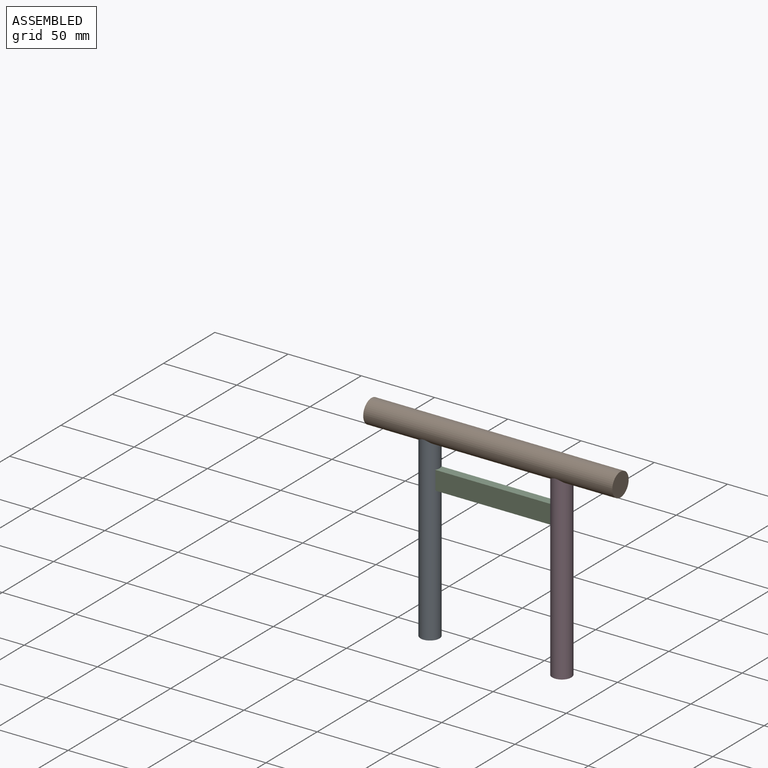
[diagram: assembled view]
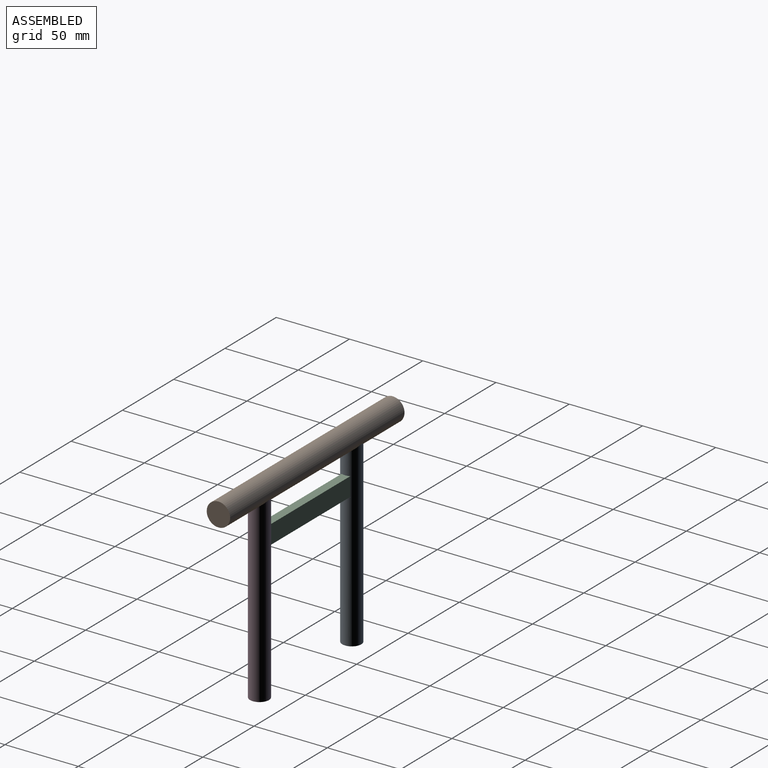
[diagram: assembled view, second angle]
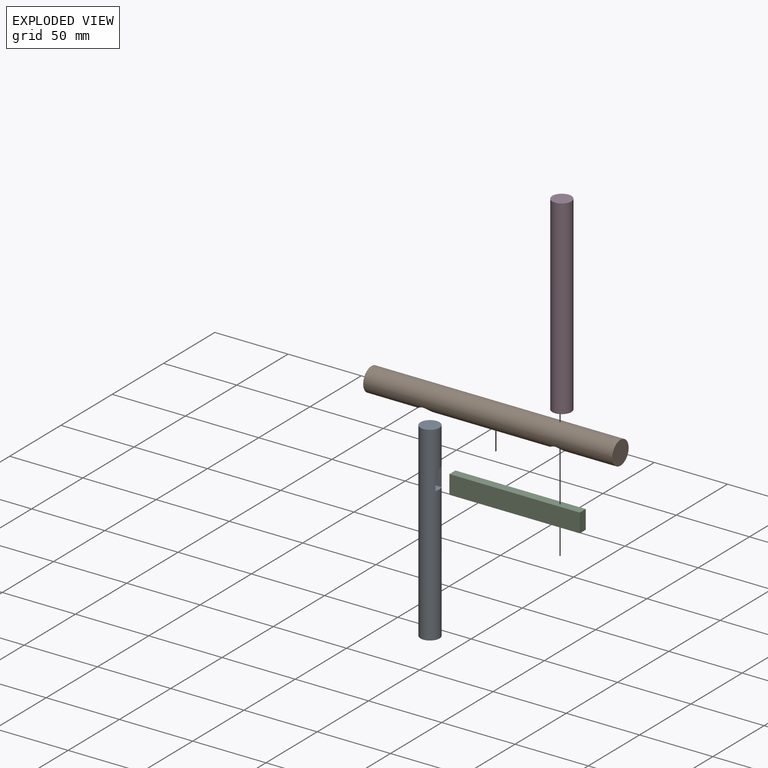
[diagram: exploded view]
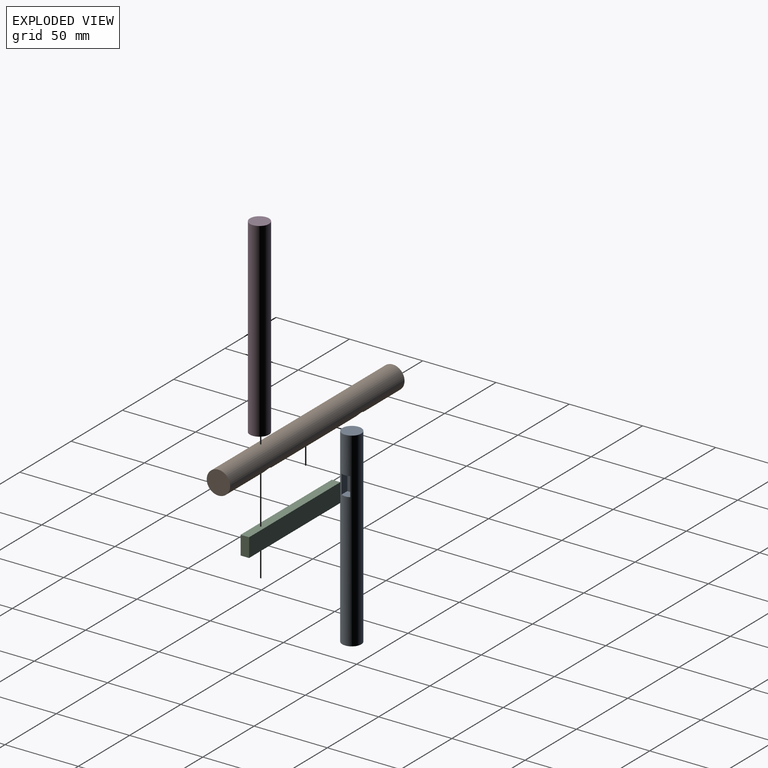
[diagram: exploded view, second angle]
ASSEMBLY  parts=4 mates=3
PART A: 8 faces, bbox 13x13x130 mm
  f0: cylinder r=6.5mm len=130mm, axis (0,0,-1), area 5228.2mm2, adj f1,f2,f3,f4,f5,f6
  f1: plane 13x13mm, normal (0,0,1), area 132.7mm2, adj f0
  f2: plane 13x13mm, normal (0,0,-1), area 132.7mm2, adj f0
  f3: plane 6.5x6mm, normal (0,0,-1), area 37.6mm2, adj f0,f4,f6,f7
  f4: plane 13x5.77mm, normal (0,1,0), area 75mm2, adj f0,f3,f5,f7
  f5: plane 6.5x6mm, normal (0,0,1), area 37.6mm2, adj f0,f4,f6,f7
  f6: plane 13x5.77mm, normal (0,-1,0), area 75mm2, adj f0,f3,f5,f7
  f7: plane 13x6mm, normal (1,0,0), area 78mm2, adj f3,f4,f5,f6
PART B: 7 faces, bbox 170x16x16 mm
  f0: cylinder r=8mm len=170mm, axis (-1,0,0), area 8238.4mm2, adj f1,f2,f3,f5
  f1: plane 16x16mm, normal (1,0,0), area 201.1mm2, adj f0
  f2: plane 16x16mm, normal (-1,0,0), area 201.1mm2, adj f0
  f3: cylinder r=6.6mm len=13.2mm, axis (0,0,-1), area 347.6mm2, adj f0,f4
  f4: plane 13.2x13.2mm, normal (0,0,-1), area 136.8mm2, adj f3
  f5: cylinder r=6.6mm len=13.2mm, axis (0,0,-1), area 347.6mm2, adj f0,f6
  f6: plane 13.2x13.2mm, normal (0,0,-1), area 136.8mm2, adj f5
PART C: 6 faces, bbox 89x12.8x5.8 mm
  f0: plane 89x12.8mm, normal (0,0,1), area 1139.2mm2, adj f1,f3,f4,f5
  f1: plane 89x5.8mm, normal (0,-1,0), area 516.2mm2, adj f0,f2,f4,f5
  f2: plane 89x12.8mm, normal (0,0,-1), area 1139.2mm2, adj f1,f3,f4,f5
  f3: plane 89x5.8mm, normal (0,1,0), area 516.2mm2, adj f0,f2,f4,f5
  f4: plane 12.8x5.8mm, normal (1,0,0), area 74.2mm2, adj f0,f1,f2,f3
  f5: plane 12.8x5.8mm, normal (-1,0,0), area 74.2mm2, adj f0,f1,f2,f3
PART D: 8 faces, bbox 13x13x130 mm
  f0: cylinder r=6.5mm len=130mm, axis (0,0,-1), area 5228.2mm2, adj f1,f2,f3,f4,f5,f6
  f1: plane 13x13mm, normal (0,0,1), area 132.7mm2, adj f0
  f2: plane 13x13mm, normal (0,0,-1), area 132.7mm2, adj f0
  f3: plane 6.5x6mm, normal (0,0,-1), area 37.6mm2, adj f0,f4,f6,f7
  f4: plane 13x5.77mm, normal (0,1,0), area 75mm2, adj f0,f3,f5,f7
  f5: plane 6.5x6mm, normal (0,0,1), area 37.6mm2, adj f0,f4,f6,f7
  f6: plane 13x5.77mm, normal (0,-1,0), area 75mm2, adj f0,f3,f5,f7
  f7: plane 13x6mm, normal (-1,0,0), area 78mm2, adj f3,f4,f5,f6
PLACE A t=(-22.25,34.61,137.11)mm
PLACE B t=(-22.25,34.61,257.11)mm
PLACE C rot(axis=(1,0,0),90deg) t=(-67.25,37.51,235.61)mm
PLACE D t=(-22.25,34.61,137.11)mm
MATE fastened C.f5 <-> A.f7  axis (-1,0,0) through (-67.25,34.61,235.61)mm
MATE fastened A.f0 <-> B.f5  axis (0,0,1) through (-67.25,34.61,267.11)mm
MATE fastened D.f0 <-> B.f3  axis (0,0,1) through (22.75,34.61,267.11)mm
